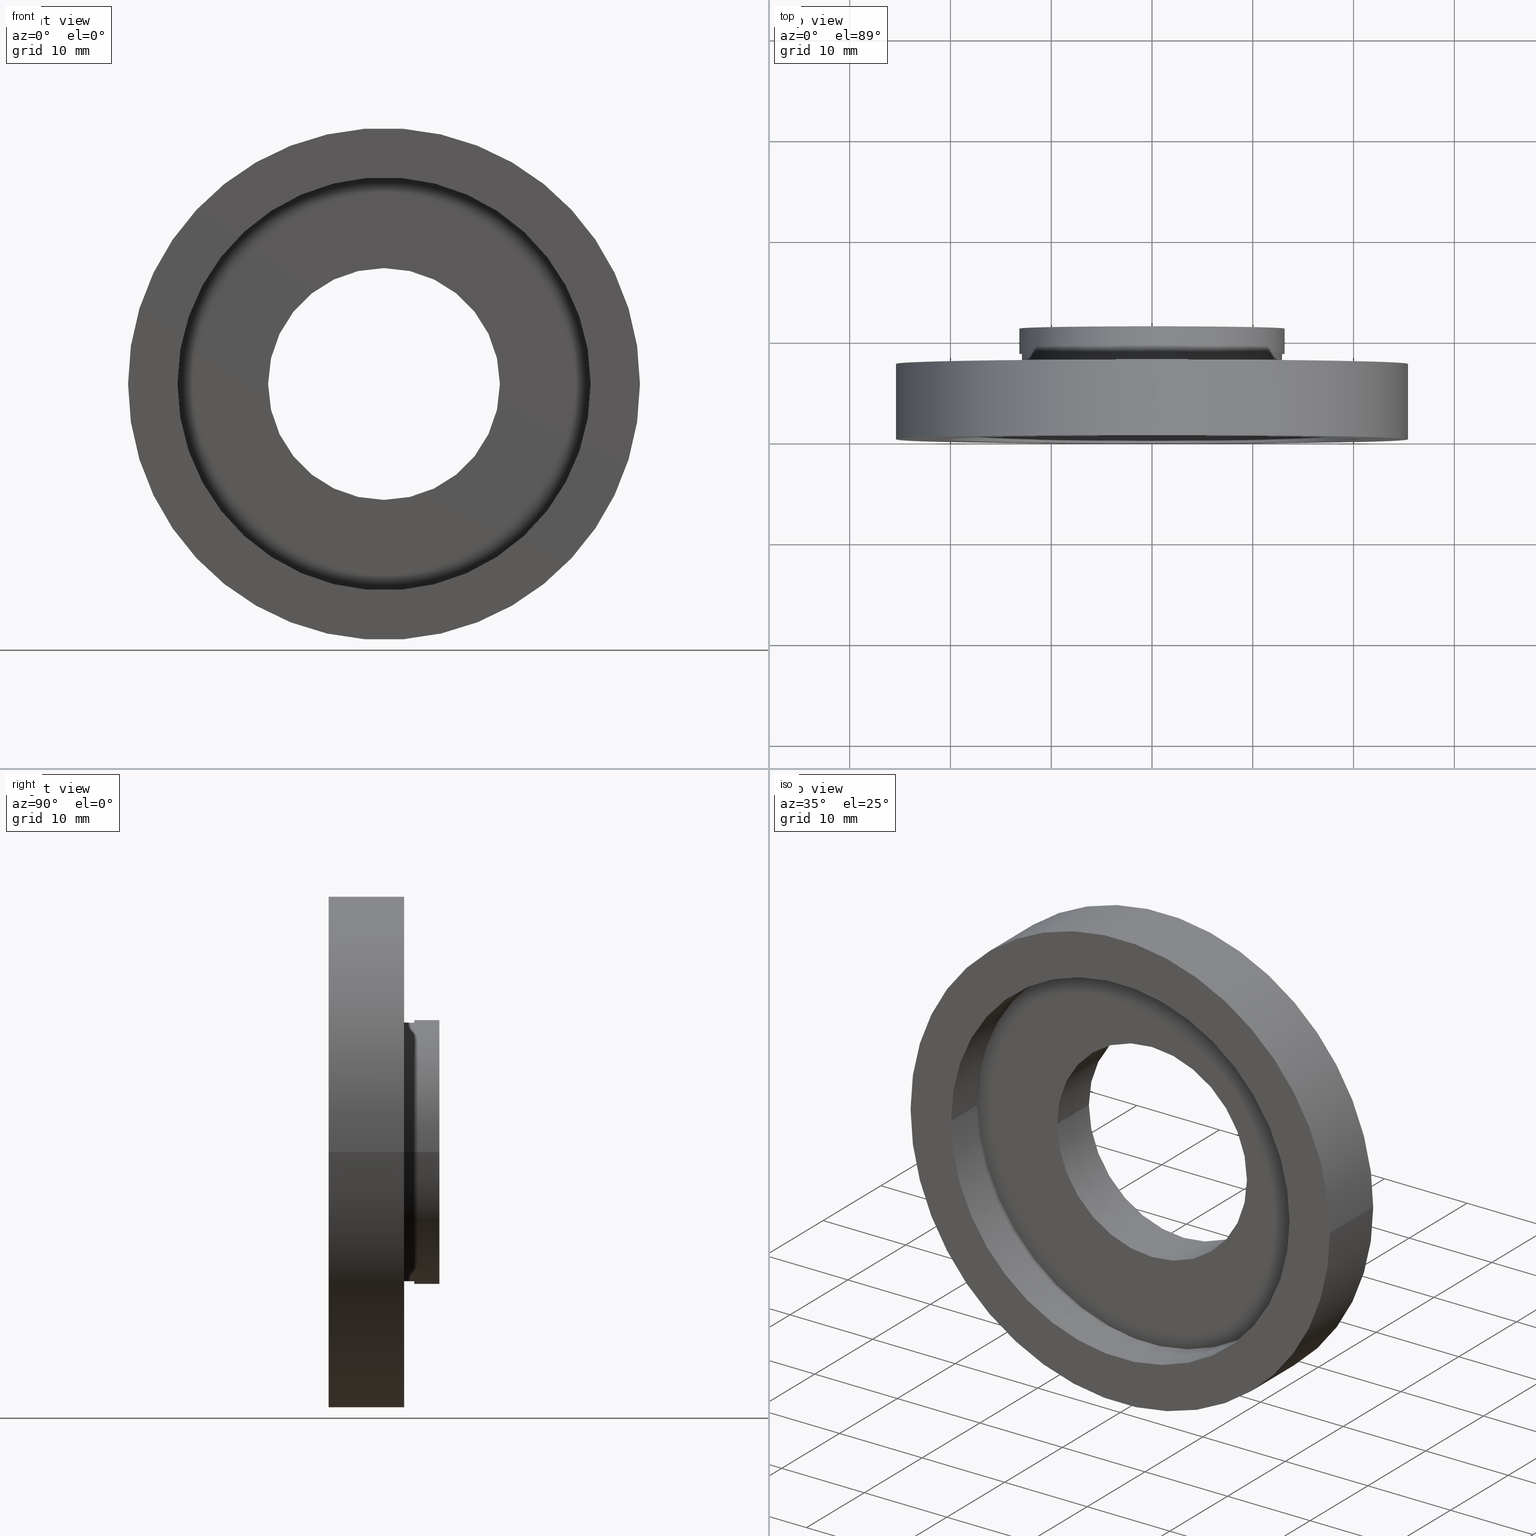
[diagram: canonical four-view strip — front | top / right | iso, engineering-drawing reading convention]
A machine part, canonical four-view strip (front | top / right | iso — engineering-drawing reading convention). The complete STEP part file that produces these views, byte-faithful:
ISO-10303-21;
HEADER;
FILE_DESCRIPTION (( 'STEP AP214' ),
    '1' );
FILE_NAME ('504113.STEP',
    '2019-10-09T07:53:14',
    ( '' ),
    ( '' ),
    'SwSTEP 2.0',
    'SolidWorks 2016',
    '' );
FILE_SCHEMA (( 'AUTOMOTIVE_DESIGN' ));
ENDSEC;

DATA;
#1 = EDGE_LOOP ( 'NONE', ( #17, #119 ) ) ;
#2 =( NAMED_UNIT ( * ) PLANE_ANGLE_UNIT ( ) SI_UNIT ( $, .RADIAN. ) );
#3 = ORIENTED_EDGE ( 'NONE', *, *, #178, .T. ) ;
#4 = CARTESIAN_POINT ( 'NONE',  ( 0.0000000000000000000, 16.88601823708207700, 0.0000000000000000000 ) ) ;
#5 = CYLINDRICAL_SURFACE ( 'NONE', #573, 11.50000000000000000 ) ;
#6 = ORIENTED_EDGE ( 'NONE', *, *, #30, .T. ) ;
#7 = CARTESIAN_POINT ( 'NONE',  ( -20.50000000000000400, 16.88601823708207300, 0.0000000000000000000 ) ) ;
#8 = COLOUR_RGB ( '',1.000000000000000000, 1.000000000000000000, 1.000000000000000000 ) ;
#9 = CIRCLE ( 'NONE', #412, 20.50000000000000400 ) ;
#10 = FACE_BOUND ( 'NONE', #469, .T. ) ;
#11 = ORIENTED_EDGE ( 'NONE', *, *, #431, .F. ) ;
#12 = ADVANCED_FACE ( 'NONE', ( #611 ), #464, .T. ) ;
#13 = ORIENTED_EDGE ( 'NONE', *, *, #354, .T. ) ;
#14 = PRESENTATION_LAYER_ASSIGNMENT (  '', '', ( #195 ) ) ;
#15 = DIRECTION ( 'NONE',  ( -1.000000000000000000, -1.224646799147351000E-016, 0.0000000000000000000 ) ) ;
#16 = CARTESIAN_POINT ( 'NONE',  ( 1.149455719078122700E-015, 7.499999999999998200, 0.0000000000000000000 ) ) ;
#17 = ORIENTED_EDGE ( 'NONE', *, *, #356, .F. ) ;
#18 = SURFACE_STYLE_FILL_AREA ( #128 ) ;
#19 = PLANE ( 'NONE',  #502 ) ;
#20 = AXIS2_PLACEMENT_3D ( 'NONE', #575, #280, #404 ) ;
#21 = CLOSED_SHELL ( 'NONE', ( #223, #576, #12, #570, #279, #375, #185, #434, #487, #536, #532, #584, #388, #328, #132, #274, #56, #321 ) ) ;
#22 = AXIS2_PLACEMENT_3D ( 'NONE', #569, #221, #613 ) ;
#23 = EDGE_LOOP ( 'NONE', ( #549, #316 ) ) ;
#24 = SURFACE_STYLE_FILL_AREA ( #312 ) ;
#25 = VERTEX_POINT ( 'NONE', #314 ) ;
#26 = DIRECTION ( 'NONE',  ( -1.000000000000000000, -1.224646799147351000E-016, 0.0000000000000000000 ) ) ;
#27 = ORIENTED_EDGE ( 'NONE', *, *, #356, .T. ) ;
#28 = LINE ( 'NONE', #74, #160 ) ;
#29 = DIRECTION ( 'NONE',  ( -1.000000000000000000, -1.233215741215739600E-016, 0.0000000000000000000 ) ) ;
#30 = EDGE_CURVE ( 'NONE', #615, #35, #529, .T. ) ;
#31 = VERTEX_POINT ( 'NONE', #122 ) ;
#32 = DIRECTION ( 'NONE',  ( -1.000000000000000000, -1.692413147294445700E-016, 0.0000000000000000000 ) ) ;
#33 = DIRECTION ( 'NONE',  ( -1.000000000000000000, -1.318178933113075200E-016, 0.0000000000000000000 ) ) ;
#34 = CYLINDRICAL_SURFACE ( 'NONE', #285, 11.50000000000000000 ) ;
#35 = VERTEX_POINT ( 'NONE', #273 ) ;
#36 = CARTESIAN_POINT ( 'NONE',  ( 0.0000000000000000000, 16.88601823708207700, 0.0000000000000000000 ) ) ;
#37 = DIRECTION ( 'NONE',  ( -1.224646799147351000E-016, 1.000000000000000000, -0.0000000000000000000 ) ) ;
#38 = AXIS2_PLACEMENT_3D ( 'NONE', #202, #157, #26 ) ;
#39 = DIRECTION ( 'NONE',  ( -1.224646799147351000E-016, 1.000000000000000000, -0.0000000000000000000 ) ) ;
#40 = CARTESIAN_POINT ( 'NONE',  ( 1.516849758822328300E-015, 4.499999999999997300, 0.0000000000000000000 ) ) ;
#41 = ORIENTED_EDGE ( 'NONE', *, *, #528, .F. ) ;
#42 = SURFACE_STYLE_USAGE ( .BOTH. , #377 ) ;
#43 = AXIS2_PLACEMENT_3D ( 'NONE', #341, #243, #149 ) ;
#44 = UNCERTAINTY_MEASURE_WITH_UNIT (LENGTH_MEASURE( 1.000000000000000100E-005 ), #319, 'distance_accuracy_value', 'NONE');
#45 = CIRCLE ( 'NONE', #87, 20.50000000000000000 ) ;
#46 =( LENGTH_UNIT ( ) NAMED_UNIT ( * ) SI_UNIT ( .MILLI., .METRE. ) );
#47 = CYLINDRICAL_SURFACE ( 'NONE', #20, 13.15999999999999800 ) ;
#48 = CARTESIAN_POINT ( 'NONE',  ( 0.0000000000000000000, 16.88601823708207700, 0.0000000000000000000 ) ) ;
#49 = DIRECTION ( 'NONE',  ( 1.000000000000000000, 1.224646799147351000E-016, 0.0000000000000000000 ) ) ;
#50 = AXIS2_PLACEMENT_3D ( 'NONE', #258, #560, #256 ) ;
#51 = CARTESIAN_POINT ( 'NONE',  ( -12.90000000000000000, 16.88601823708207700, 0.0000000000000000000 ) ) ;
#52 = CARTESIAN_POINT ( 'NONE',  ( 21.10000000000000100, 4.500000000000000000, 2.584004746200915400E-015 ) ) ;
#53 = EDGE_CURVE ( 'NONE', #201, #355, #475, .T. ) ;
#54 = VERTEX_POINT ( 'NONE', #71 ) ;
#55 = SURFACE_SIDE_STYLE ('',( #187 ) ) ;
#56 = ADVANCED_FACE ( 'NONE', ( #10, #370 ), #211, .F. ) ;
#57 = DIRECTION ( 'NONE',  ( -1.224646799147351000E-016, 1.000000000000000000, -0.0000000000000000000 ) ) ;
#58 = ORIENTED_EDGE ( 'NONE', *, *, #219, .T. ) ;
#59 = CARTESIAN_POINT ( 'NONE',  ( 25.39999999999999900, -3.588440821193433400E-016, 3.110602869834276900E-015 ) ) ;
#60 = CIRCLE ( 'NONE', #297, 21.10000000000000100 ) ;
#61 = ORIENTED_EDGE ( 'NONE', *, *, #117, .T. ) ;
#62 = DIRECTION ( 'NONE',  ( 1.224646799147351000E-016, -1.000000000000000000, 0.0000000000000000000 ) ) ;
#63 = ORIENTED_EDGE ( 'NONE', *, *, #117, .F. ) ;
#64 = VERTEX_POINT ( 'NONE', #170 ) ;
#65 = MECHANICAL_DESIGN_GEOMETRIC_PRESENTATION_REPRESENTATION (  '', ( #247 ), #99 ) ;
#66 = LINE ( 'NONE', #165, #470 ) ;
#67 = AXIS2_PLACEMENT_3D ( 'NONE', #587, #241, #296 ) ;
#68 = CARTESIAN_POINT ( 'NONE',  ( 2.067940818438636500E-015, -3.469446951953614200E-015, 0.0000000000000000000 ) ) ;
#69 = ORIENTED_EDGE ( 'NONE', *, *, #458, .T. ) ;
#70 = DIRECTION ( 'NONE',  ( -1.224646799147351000E-016, 1.000000000000000000, -0.0000000000000000000 ) ) ;
#71 = CARTESIAN_POINT ( 'NONE',  ( 12.90000000000000200, 8.500000000000000000, 1.579794370900085700E-015 ) ) ;
#72 = ORIENTED_EDGE ( 'NONE', *, *, #437, .T. ) ;
#73 =( GEOMETRIC_REPRESENTATION_CONTEXT ( 3 ) GLOBAL_UNCERTAINTY_ASSIGNED_CONTEXT ( ( #111 ) ) GLOBAL_UNIT_ASSIGNED_CONTEXT ( ( #363, #557, #124 ) ) REPRESENTATION_CONTEXT ( 'NONE', 'WORKASPACE' ) );
#74 = CARTESIAN_POINT ( 'NONE',  ( -25.39999999999999900, 16.88601823708207300, 0.0000000000000000000 ) ) ;
#75 = FILL_AREA_STYLE ('',( #555 ) ) ;
#76 = EDGE_CURVE ( 'NONE', #467, #35, #193, .T. ) ;
#77 = CARTESIAN_POINT ( 'NONE',  ( -13.15999999999999800, 16.88601823708207700, 0.0000000000000000000 ) ) ;
#78 = CARTESIAN_POINT ( 'NONE',  ( 1.026991039163387700E-015, 8.499999999999998200, 0.0000000000000000000 ) ) ;
#79 = EDGE_LOOP ( 'NONE', ( #598, #283, #559, #492 ) ) ;
#80 = DIRECTION ( 'NONE',  ( -1.000000000000000000, -1.224646799147351000E-016, 0.0000000000000000000 ) ) ;
#81 =( NAMED_UNIT ( * ) SI_UNIT ( $, .STERADIAN. ) SOLID_ANGLE_UNIT ( ) );
#82 = EDGE_LOOP ( 'NONE', ( #72, #96 ) ) ;
#83 = CARTESIAN_POINT ( 'NONE',  ( 25.39999999999999900, 4.336808689942011800E-016, 0.0000000000000000000 ) ) ;
#84 = CIRCLE ( 'NONE', #352, 12.90000000000000000 ) ;
#85 = DIRECTION ( 'NONE',  ( 0.0000000000000000000, 0.0000000000000000000, 1.000000000000000000 ) ) ;
#86 = DIRECTION ( 'NONE',  ( -1.224646799147351000E-016, 1.000000000000000000, -0.0000000000000000000 ) ) ;
#87 = AXIS2_PLACEMENT_3D ( 'NONE', #68, #104, #498 ) ;
#88 = VERTEX_POINT ( 'NONE', #472 ) ;
#89 = CARTESIAN_POINT ( 'NONE',  ( -11.49999999999999800, 5.499999999999996400, 0.0000000000000000000 ) ) ;
#90 = DIRECTION ( 'NONE',  ( -1.224646799147351000E-016, 1.000000000000000000, -0.0000000000000000000 ) ) ;
#91 = AXIS2_PLACEMENT_3D ( 'NONE', #440, #583, #335 ) ;
#92 = CARTESIAN_POINT ( 'NONE',  ( 1.516849758822328100E-015, 4.499999999999999100, 0.0000000000000000000 ) ) ;
#93 = VECTOR ( 'NONE', #538, 1000.000000000000000 ) ;
#94 = CYLINDRICAL_SURFACE ( 'NONE', #357, 12.90000000000000000 ) ;
#95 = CARTESIAN_POINT ( 'NONE',  ( 0.0000000000000000000, 16.88601823708207700, 0.0000000000000000000 ) ) ;
#96 = ORIENTED_EDGE ( 'NONE', *, *, #589, .T. ) ;
#97 = CARTESIAN_POINT ( 'NONE',  ( 12.90000000000000000, 16.88601823708207700, 1.579794370900085700E-015 ) ) ;
#98 = ORIENTED_EDGE ( 'NONE', *, *, #163, .T. ) ;
#99 =( GEOMETRIC_REPRESENTATION_CONTEXT ( 3 ) GLOBAL_UNCERTAINTY_ASSIGNED_CONTEXT ( ( #503 ) ) GLOBAL_UNIT_ASSIGNED_CONTEXT ( ( #210, #322, #478 ) ) REPRESENTATION_CONTEXT ( 'NONE', 'WORKASPACE' ) );
#100 = VERTEX_POINT ( 'NONE', #134 ) ;
#101 = CYLINDRICAL_SURFACE ( 'NONE', #547, 25.39999999999999900 ) ;
#102 = ORIENTED_EDGE ( 'NONE', *, *, #53, .T. ) ;
#103 = AXIS2_PLACEMENT_3D ( 'NONE', #36, #515, #116 ) ;
#104 = DIRECTION ( 'NONE',  ( -1.224646799147351000E-016, 1.000000000000000000, -0.0000000000000000000 ) ) ;
#105 = ORIENTED_EDGE ( 'NONE', *, *, #499, .T. ) ;
#106 = ORIENTED_EDGE ( 'NONE', *, *, #163, .F. ) ;
#107 = MECHANICAL_DESIGN_GEOMETRIC_PRESENTATION_REPRESENTATION (  '', ( #340 ), #146 ) ;
#108 = FACE_OUTER_BOUND ( 'NONE', #408, .T. ) ;
#109 = AXIS2_PLACEMENT_3D ( 'NONE', #489, #438, #325 ) ;
#110 = VERTEX_POINT ( 'NONE', #565 ) ;
#111 = UNCERTAINTY_MEASURE_WITH_UNIT (LENGTH_MEASURE( 1.000000000000000100E-005 ), #363, 'distance_accuracy_value', 'NONE');
#112 = AXIS2_PLACEMENT_3D ( 'NONE', #315, #574, #272 ) ;
#113 = CARTESIAN_POINT ( 'NONE',  ( 2.067940818438636500E-015, -3.469446951953614200E-015, 0.0000000000000000000 ) ) ;
#114 = DIRECTION ( 'NONE',  ( -1.224646799147351000E-016, 1.000000000000000000, 0.0000000000000000000 ) ) ;
#115 = COLOUR_RGB ( '',1.000000000000000000, 1.000000000000000000, 1.000000000000000000 ) ;
#116 = DIRECTION ( 'NONE',  ( -1.000000000000000000, 0.0000000000000000000, 0.0000000000000000000 ) ) ;
#117 = EDGE_CURVE ( 'NONE', #158, #100, #154, .T. ) ;
#118 = SURFACE_STYLE_USAGE ( .BOTH. , #120 ) ;
#119 = ORIENTED_EDGE ( 'NONE', *, *, #396, .F. ) ;
#120 = SURFACE_SIDE_STYLE ('',( #24 ) ) ;
#121 = ORIENTED_EDGE ( 'NONE', *, *, #344, .F. ) ;
#122 = CARTESIAN_POINT ( 'NONE',  ( -12.89999999999999900, 7.499999999999996400, 0.0000000000000000000 ) ) ;
#123 = ORIENTED_EDGE ( 'NONE', *, *, #431, .T. ) ;
#124 =( NAMED_UNIT ( * ) SI_UNIT ( $, .STERADIAN. ) SOLID_ANGLE_UNIT ( ) );
#125 = DIRECTION ( 'NONE',  ( -1.224646799147351000E-016, 1.000000000000000000, 0.0000000000000000000 ) ) ;
#126 = CIRCLE ( 'NONE', #67, 11.50000000000000200 ) ;
#127 = STYLED_ITEM ( 'NONE', ( #174 ), #375 ) ;
#128 = FILL_AREA_STYLE ('',( #481 ) ) ;
#129 = CARTESIAN_POINT ( 'NONE',  ( 1.516849758822328100E-015, 4.499999999999999100, 0.0000000000000000000 ) ) ;
#130 = AXIS2_PLACEMENT_3D ( 'NONE', #40, #419, #617 ) ;
#131 = ORIENTED_EDGE ( 'NONE', *, *, #324, .F. ) ;
#132 = ADVANCED_FACE ( 'NONE', ( #530, #304 ), #177, .F. ) ;
#133 =( NAMED_UNIT ( * ) SI_UNIT ( $, .STERADIAN. ) SOLID_ANGLE_UNIT ( ) );
#134 = CARTESIAN_POINT ( 'NONE',  ( 13.16000000000000200, 10.99999999999999800, 1.611635187677917100E-015 ) ) ;
#135 = PRODUCT_RELATED_PRODUCT_CATEGORY ( 'part', '', ( #148 ) ) ;
#136 = DIRECTION ( 'NONE',  ( -1.224646799147351000E-016, 1.000000000000000000, -0.0000000000000000000 ) ) ;
#137 = SURFACE_STYLE_USAGE ( .BOTH. , #55 ) ;
#138 = SURFACE_STYLE_USAGE ( .BOTH. , #579 ) ;
#139 = AXIS2_PLACEMENT_3D ( 'NONE', #186, #57, #581 ) ;
#140 = DIRECTION ( 'NONE',  ( -1.224646799147351000E-016, 1.000000000000000000, -0.0000000000000000000 ) ) ;
#141 = FACE_OUTER_BOUND ( 'NONE', #79, .T. ) ;
#142 = AXIS2_PLACEMENT_3D ( 'NONE', #129, #378, #368 ) ;
#143 = FILL_AREA_STYLE ('',( #330 ) ) ;
#144 = APPLICATION_PROTOCOL_DEFINITION ( 'draft international standard', 'automotive_design', 1998, #286 ) ;
#145 = UNCERTAINTY_MEASURE_WITH_UNIT (LENGTH_MEASURE( 1.000000000000000100E-005 ), #495, 'distance_accuracy_value', 'NONE');
#146 =( GEOMETRIC_REPRESENTATION_CONTEXT ( 3 ) GLOBAL_UNCERTAINTY_ASSIGNED_CONTEXT ( ( #497 ) ) GLOBAL_UNIT_ASSIGNED_CONTEXT ( ( #432, #215, #531 ) ) REPRESENTATION_CONTEXT ( 'NONE', 'WORKASPACE' ) );
#147 = ORIENTED_EDGE ( 'NONE', *, *, #516, .F. ) ;
#148 = PRODUCT ( '504113', '504113', '', ( #338 ) ) ;
#149 = DIRECTION ( 'NONE',  ( -1.000000000000000000, -1.365923996832131600E-016, 0.0000000000000000000 ) ) ;
#150 = PRODUCT_DEFINITION_SHAPE ( 'NONE', 'NONE',  #455 ) ;
#151 = EDGE_CURVE ( 'NONE', #479, #236, #411, .T. ) ;
#152 = ORIENTED_EDGE ( 'NONE', *, *, #295, .T. ) ;
#153 = CIRCLE ( 'NONE', #38, 25.39999999999999500 ) ;
#154 = CIRCLE ( 'NONE', #299, 13.16000000000000000 ) ;
#155 = ORIENTED_EDGE ( 'NONE', *, *, #308, .T. ) ;
#156 = STYLED_ITEM ( 'NONE', ( #246 ), #434 ) ;
#157 = DIRECTION ( 'NONE',  ( -1.224646799147351000E-016, 1.000000000000000000, -0.0000000000000000000 ) ) ;
#158 = VERTEX_POINT ( 'NONE', #610 ) ;
#159 = AXIS2_PLACEMENT_3D ( 'NONE', #83, #520, #218 ) ;
#160 = VECTOR ( 'NONE', #604, 1000.000000000000000 ) ;
#161 = DIRECTION ( 'NONE',  ( -1.000000000000000000, -1.644287654954319300E-016, 0.0000000000000000000 ) ) ;
#162 = ORIENTED_EDGE ( 'NONE', *, *, #354, .F. ) ;
#163 = EDGE_CURVE ( 'NONE', #167, #110, #329, .T. ) ;
#164 = CARTESIAN_POINT ( 'NONE',  ( -11.50000000000000000, 16.88601823708207700, 0.0000000000000000000 ) ) ;
#165 = CARTESIAN_POINT ( 'NONE',  ( 21.10000000000000100, 16.88601823708208000, 2.584004746200915400E-015 ) ) ;
#166 = PLANE ( 'NONE',  #159 ) ;
#167 = VERTEX_POINT ( 'NONE', #216 ) ;
#168 = MECHANICAL_DESIGN_GEOMETRIC_PRESENTATION_REPRESENTATION (  '', ( #334 ), #230 ) ;
#169 = CARTESIAN_POINT ( 'NONE',  ( 2.067940818438636500E-015, -3.469446951953614200E-015, 0.0000000000000000000 ) ) ;
#170 = CARTESIAN_POINT ( 'NONE',  ( 20.50000000000000400, -9.589210137015444400E-016, 2.510525938252074500E-015 ) ) ;
#171 = EDGE_LOOP ( 'NONE', ( #376, #131, #6, #13 ) ) ;
#172 = CARTESIAN_POINT ( 'NONE',  ( 0.0000000000000000000, 16.88601823708207700, 0.0000000000000000000 ) ) ;
#173 = CARTESIAN_POINT ( 'NONE',  ( 13.15999999999999800, 16.88601823708207700, 1.611635187677916700E-015 ) ) ;
#174 = PRESENTATION_STYLE_ASSIGNMENT (( #501 ) ) ;
#175 =( NAMED_UNIT ( * ) PLANE_ANGLE_UNIT ( ) SI_UNIT ( $, .RADIAN. ) );
#176 = CARTESIAN_POINT ( 'NONE',  ( -25.39999999999999900, 7.499999999999992900, 0.0000000000000000000 ) ) ;
#177 = PLANE ( 'NONE',  #204 ) ;
#178 = EDGE_CURVE ( 'NONE', #346, #355, #395, .T. ) ;
#179 = DIRECTION ( 'NONE',  ( -1.000000000000000000, 0.0000000000000000000, 0.0000000000000000000 ) ) ;
#180 = FILL_AREA_STYLE ('',( #624 ) ) ;
#181 = CARTESIAN_POINT ( 'NONE',  ( 11.50000000000000000, 16.88601823708207700, 1.408343819019456200E-015 ) ) ;
#182 = DIRECTION ( 'NONE',  ( -1.224646799147351000E-016, 1.000000000000000000, -0.0000000000000000000 ) ) ;
#184 = EDGE_LOOP ( 'NONE', ( #257, #488, #525, #121 ) ) ;
#183 = AXIS2_PLACEMENT_3D ( 'NONE', #307, #561, #207 ) ;
#185 = ADVANCED_FACE ( 'NONE', ( #606, #417 ), #166, .F. ) ;
#186 = CARTESIAN_POINT ( 'NONE',  ( 1.394385078907593200E-015, 5.499999999999996400, 0.0000000000000000000 ) ) ;
#187 = SURFACE_STYLE_FILL_AREA ( #143 ) ;
#188 = EDGE_CURVE ( 'NONE', #269, #252, #405, .T. ) ;
#189 = ORIENTED_EDGE ( 'NONE', *, *, #596, .F. ) ;
#190 = UNCERTAINTY_MEASURE_WITH_UNIT (LENGTH_MEASURE( 1.000000000000000100E-005 ), #339, 'distance_accuracy_value', 'NONE');
#191 = CYLINDRICAL_SURFACE ( 'NONE', #578, 21.10000000000000100 ) ;
#192 = EDGE_CURVE ( 'NONE', #269, #100, #429, .T. ) ;
#193 = CIRCLE ( 'NONE', #22, 11.50000000000000200 ) ;
#194 = VERTEX_POINT ( 'NONE', #422 ) ;
#195 = STYLED_ITEM ( 'NONE', ( #254 ), #328 ) ;
#196 = ORIENTED_EDGE ( 'NONE', *, *, #76, .F. ) ;
#197 = CIRCLE ( 'NONE', #50, 11.50000000000000000 ) ;
#198 = COLOUR_RGB ( '',1.000000000000000000, 1.000000000000000000, 1.000000000000000000 ) ;
#199 =( NAMED_UNIT ( * ) SI_UNIT ( $, .STERADIAN. ) SOLID_ANGLE_UNIT ( ) );
#200 = MECHANICAL_DESIGN_GEOMETRIC_PRESENTATION_REPRESENTATION (  '', ( #156 ), #73 ) ;
#201 = VERTEX_POINT ( 'NONE', #176 ) ;
#202 = CARTESIAN_POINT ( 'NONE',  ( 2.067940818438636500E-015, -3.469446951953614200E-015, 0.0000000000000000000 ) ) ;
#203 = DIRECTION ( 'NONE',  ( -1.224646799147351000E-016, 1.000000000000000000, -0.0000000000000000000 ) ) ;
#204 = AXIS2_PLACEMENT_3D ( 'NONE', #372, #125, #80 ) ;
#205 = CYLINDRICAL_SURFACE ( 'NONE', #260, 25.39999999999999900 ) ;
#206 = DIRECTION ( 'NONE',  ( -1.000000000000000000, -1.344746880602176000E-016, 0.0000000000000000000 ) ) ;
#207 = DIRECTION ( 'NONE',  ( 1.000000000000000000, 1.224646799147351000E-016, 0.0000000000000000000 ) ) ;
#208 = CARTESIAN_POINT ( 'NONE',  ( 0.0000000000000000000, 16.88601823708207700, 0.0000000000000000000 ) ) ;
#209 = EDGE_LOOP ( 'NONE', ( #231, #597, #63, #147 ) ) ;
#210 =( LENGTH_UNIT ( ) NAMED_UNIT ( * ) SI_UNIT ( .MILLI., .METRE. ) );
#211 = PLANE ( 'NONE',  #474 ) ;
#212 = VECTOR ( 'NONE', #203, 1000.000000000000000 ) ;
#213 = AXIS2_PLACEMENT_3D ( 'NONE', #426, #136, #485 ) ;
#214 = VECTOR ( 'NONE', #543, 1000.000000000000000 ) ;
#215 =( NAMED_UNIT ( * ) PLANE_ANGLE_UNIT ( ) SI_UNIT ( $, .RADIAN. ) );
#216 = CARTESIAN_POINT ( 'NONE',  ( -20.50000000000000400, 4.499999999999996400, 0.0000000000000000000 ) ) ;
#217 = VERTEX_POINT ( 'NONE', #333 ) ;
#218 = DIRECTION ( 'NONE',  ( -1.000000000000000000, -1.224646799147351000E-016, 0.0000000000000000000 ) ) ;
#219 = EDGE_CURVE ( 'NONE', #88, #54, #462, .T. ) ;
#220 = FILL_AREA_STYLE_COLOUR ( '', #311 ) ;
#221 = DIRECTION ( 'NONE',  ( -1.224646799147351000E-016, 1.000000000000000000, -0.0000000000000000000 ) ) ;
#222 = ORIENTED_EDGE ( 'NONE', *, *, #458, .F. ) ;
#223 = ADVANCED_FACE ( 'NONE', ( #394 ), #101, .T. ) ;
#224 = APPLICATION_CONTEXT ( 'automotive_design' ) ;
#225 = CARTESIAN_POINT ( 'NONE',  ( 0.0000000000000000000, 16.88601823708207700, 0.0000000000000000000 ) ) ;
#226 = VECTOR ( 'NONE', #382, 1000.000000000000000 ) ;
#227 = CARTESIAN_POINT ( 'NONE',  ( 20.50000000000000400, 16.88601823708208000, 2.510525938252074500E-015 ) ) ;
#228 = ORIENTED_EDGE ( 'NONE', *, *, #264, .F. ) ;
#229 =( NAMED_UNIT ( * ) PLANE_ANGLE_UNIT ( ) SI_UNIT ( $, .RADIAN. ) );
#230 =( GEOMETRIC_REPRESENTATION_CONTEXT ( 3 ) GLOBAL_UNCERTAINTY_ASSIGNED_CONTEXT ( ( #145 ) ) GLOBAL_UNIT_ASSIGNED_CONTEXT ( ( #495, #2, #327 ) ) REPRESENTATION_CONTEXT ( 'NONE', 'WORKASPACE' ) );
#231 = ORIENTED_EDGE ( 'NONE', *, *, #556, .T. ) ;
#232 = FACE_OUTER_BOUND ( 'NONE', #564, .T. ) ;
#233 = UNCERTAINTY_MEASURE_WITH_UNIT (LENGTH_MEASURE( 1.000000000000000100E-005 ), #607, 'distance_accuracy_value', 'NONE');
#234 = STYLED_ITEM ( 'NONE', ( #265 ), #12 ) ;
#235 = DIRECTION ( 'NONE',  ( -1.224646799147351000E-016, 1.000000000000000000, -0.0000000000000000000 ) ) ;
#236 = VERTEX_POINT ( 'NONE', #52 ) ;
#237 = ORIENTED_EDGE ( 'NONE', *, *, #392, .F. ) ;
#238 =( NAMED_UNIT ( * ) PLANE_ANGLE_UNIT ( ) SI_UNIT ( $, .RADIAN. ) );
#239 = PRESENTATION_LAYER_ASSIGNMENT (  '', '', ( #247 ) ) ;
#240 = EDGE_LOOP ( 'NONE', ( #102, #508 ) ) ;
#241 = DIRECTION ( 'NONE',  ( -1.224646799147351000E-016, 1.000000000000000000, -0.0000000000000000000 ) ) ;
#242 = VECTOR ( 'NONE', #267, 1000.000000000000000 ) ;
#243 = DIRECTION ( 'NONE',  ( -1.224646799147351000E-016, 1.000000000000000000, -0.0000000000000000000 ) ) ;
#244 = EDGE_LOOP ( 'NONE', ( #517, #58, #364, #189 ) ) ;
#245 = PRESENTATION_STYLE_ASSIGNMENT (( #317 ) ) ;
#246 = PRESENTATION_STYLE_ASSIGNMENT (( #118 ) ) ;
#247 = STYLED_ITEM ( 'NONE', ( #262 ), #570 ) ;
#248 = ORIENTED_EDGE ( 'NONE', *, *, #53, .F. ) ;
#249 = ORIENTED_EDGE ( 'NONE', *, *, #486, .F. ) ;
#250 = DIRECTION ( 'NONE',  ( -1.224646799147351000E-016, 1.000000000000000000, -0.0000000000000000000 ) ) ;
#251 =( GEOMETRIC_REPRESENTATION_CONTEXT ( 3 ) GLOBAL_UNCERTAINTY_ASSIGNED_CONTEXT ( ( #233 ) ) GLOBAL_UNIT_ASSIGNED_CONTEXT ( ( #607, #253, #410 ) ) REPRESENTATION_CONTEXT ( 'NONE', 'WORKASPACE' ) );
#252 = VERTEX_POINT ( 'NONE', #284 ) ;
#253 =( NAMED_UNIT ( * ) PLANE_ANGLE_UNIT ( ) SI_UNIT ( $, .RADIAN. ) );
#254 = PRESENTATION_STYLE_ASSIGNMENT (( #138 ) ) ;
#255 = SURFACE_STYLE_USAGE ( .BOTH. , #259 ) ;
#256 = DIRECTION ( 'NONE',  ( -1.000000000000000000, -1.508455196501571400E-016, 0.0000000000000000000 ) ) ;
#257 = ORIENTED_EDGE ( 'NONE', *, *, #178, .F. ) ;
#258 = CARTESIAN_POINT ( 'NONE',  ( 1.394385078907593000E-015, 5.499999999999998200, 0.0000000000000000000 ) ) ;
#259 = SURFACE_SIDE_STYLE ('',( #347 ) ) ;
#260 = AXIS2_PLACEMENT_3D ( 'NONE', #95, #444, #491 ) ;
#261 = ORIENTED_EDGE ( 'NONE', *, *, #76, .T. ) ;
#262 = PRESENTATION_STYLE_ASSIGNMENT (( #42 ) ) ;
#263 = CARTESIAN_POINT ( 'NONE',  ( 1.149455719078123100E-015, 7.499999999999996400, 0.0000000000000000000 ) ) ;
#264 = EDGE_CURVE ( 'NONE', #110, #167, #9, .T. ) ;
#265 = PRESENTATION_STYLE_ASSIGNMENT (( #255 ) ) ;
#266 = CARTESIAN_POINT ( 'NONE',  ( 0.0000000000000000000, 0.0000000000000000000, 0.0000000000000000000 ) ) ;
#267 = DIRECTION ( 'NONE',  ( -1.224646799147351000E-016, 1.000000000000000000, -0.0000000000000000000 ) ) ;
#268 = FILL_AREA_STYLE ('',( #373 ) ) ;
#269 = VERTEX_POINT ( 'NONE', #442 ) ;
#270 = STYLED_ITEM ( 'NONE', ( #245 ), #584 ) ;
#271 = FACE_OUTER_BOUND ( 'NONE', #294, .T. ) ;
#272 = DIRECTION ( 'NONE',  ( -1.000000000000000000, -1.344746880602176000E-016, 0.0000000000000000000 ) ) ;
#273 = CARTESIAN_POINT ( 'NONE',  ( -11.50000000000000200, 10.99999999999999500, 0.0000000000000000000 ) ) ;
#274 = ADVANCED_FACE ( 'NONE', ( #271 ), #553, .T. ) ;
#275 = ORIENTED_EDGE ( 'NONE', *, *, #383, .F. ) ;
#276 = DIRECTION ( 'NONE',  ( 1.000000000000000000, 0.0000000000000000000, 0.0000000000000000000 ) ) ;
#277 = DIRECTION ( 'NONE',  ( -1.000000000000000000, -1.365923996832131600E-016, 0.0000000000000000000 ) ) ;
#278 = EDGE_CURVE ( 'NONE', #402, #467, #326, .T. ) ;
#279 = ADVANCED_FACE ( 'NONE', ( #108 ), #191, .F. ) ;
#280 = DIRECTION ( 'NONE',  ( -1.224646799147351000E-016, 1.000000000000000000, -0.0000000000000000000 ) ) ;
#281 =( NAMED_UNIT ( * ) SI_UNIT ( $, .STERADIAN. ) SOLID_ANGLE_UNIT ( ) );
#282 = DIRECTION ( 'NONE',  ( -1.224646799147351000E-016, 1.000000000000000000, -0.0000000000000000000 ) ) ;
#283 = ORIENTED_EDGE ( 'NONE', *, *, #151, .F. ) ;
#284 = CARTESIAN_POINT ( 'NONE',  ( -13.15999999999999700, 8.499999999999996400, 0.0000000000000000000 ) ) ;
#285 = AXIS2_PLACEMENT_3D ( 'NONE', #48, #623, #371 ) ;
#286 = APPLICATION_CONTEXT ( 'automotive_design' ) ;
#287 = ORIENTED_EDGE ( 'NONE', *, *, #516, .T. ) ;
#288 = CYLINDRICAL_SURFACE ( 'NONE', #406, 21.10000000000000100 ) ;
#289 = CIRCLE ( 'NONE', #139, 21.10000000000000100 ) ;
#290 = AXIS2_PLACEMENT_3D ( 'NONE', #263, #365, #619 ) ;
#291 = DIRECTION ( 'NONE',  ( -1.224646799147351000E-016, 1.000000000000000000, -0.0000000000000000000 ) ) ;
#292 = ORIENTED_EDGE ( 'NONE', *, *, #486, .T. ) ;
#293 = CARTESIAN_POINT ( 'NONE',  ( -21.10000000000000100, 16.88601823708207300, 0.0000000000000000000 ) ) ;
#294 = EDGE_LOOP ( 'NONE', ( #582, #69, #599, #618 ) ) ;
#295 = EDGE_CURVE ( 'NONE', #25, #167, #318, .T. ) ;
#296 = DIRECTION ( 'NONE',  ( -1.000000000000000000, -1.508455196501571200E-016, 0.0000000000000000000 ) ) ;
#297 = AXIS2_PLACEMENT_3D ( 'NONE', #514, #70, #416 ) ;
#298 = CIRCLE ( 'NONE', #524, 12.90000000000000000 ) ;
#299 = AXIS2_PLACEMENT_3D ( 'NONE', #323, #563, #522 ) ;
#300 = EDGE_CURVE ( 'NONE', #217, #384, #289, .T. ) ;
#301 = EDGE_LOOP ( 'NONE', ( #27, #3, #248, #504 ) ) ;
#302 = COLOUR_RGB ( '',1.000000000000000000, 1.000000000000000000, 1.000000000000000000 ) ;
#303 = CARTESIAN_POINT ( 'NONE',  ( 11.50000000000000200, 5.500000000000000000, 1.408343819019456600E-015 ) ) ;
#304 = FACE_BOUND ( 'NONE', #82, .T. ) ;
#305 = AXIS2_PLACEMENT_3D ( 'NONE', #266, #85, #276 ) ;
#306 = ORIENTED_EDGE ( 'NONE', *, *, #605, .F. ) ;
#307 = CARTESIAN_POINT ( 'NONE',  ( 20.50000000000000400, 4.499999999999999100, 0.0000000000000000000 ) ) ;
#308 = EDGE_CURVE ( 'NONE', #64, #110, #351, .T. ) ;
#309 = MANIFOLD_SOLID_BREP ( '��ת1', #21 ) ;
#310 = CARTESIAN_POINT ( 'NONE',  ( 1.149455719078122700E-015, 7.499999999999998200, 0.0000000000000000000 ) ) ;
#311 = COLOUR_RGB ( '',1.000000000000000000, 1.000000000000000000, 1.000000000000000000 ) ;
#312 = FILL_AREA_STYLE ('',( #585 ) ) ;
#313 = CARTESIAN_POINT ( 'NONE',  ( 0.0000000000000000000, 16.88601823708207700, 0.0000000000000000000 ) ) ;
#314 = CARTESIAN_POINT ( 'NONE',  ( -20.49999999999999600, -5.979972890205683900E-015, 0.0000000000000000000 ) ) ;
#315 = CARTESIAN_POINT ( 'NONE',  ( 1.026991039163387700E-015, 8.499999999999998200, 0.0000000000000000000 ) ) ;
#316 = ORIENTED_EDGE ( 'NONE', *, *, #461, .F. ) ;
#317 = SURFACE_STYLE_USAGE ( .BOTH. , #436 ) ;
#318 = LINE ( 'NONE', #7, #226 ) ;
#319 =( LENGTH_UNIT ( ) NAMED_UNIT ( * ) SI_UNIT ( .MILLI., .METRE. ) );
#320 = AXIS2_PLACEMENT_3D ( 'NONE', #427, #430, #374 ) ;
#321 = ADVANCED_FACE ( 'NONE', ( #513 ), #205, .T. ) ;
#322 =( NAMED_UNIT ( * ) PLANE_ANGLE_UNIT ( ) SI_UNIT ( $, .RADIAN. ) );
#323 = CARTESIAN_POINT ( 'NONE',  ( 7.208293393765502500E-016, 10.99999999999999600, 0.0000000000000000000 ) ) ;
#324 = EDGE_CURVE ( 'NONE', #615, #402, #592, .T. ) ;
#325 = DIRECTION ( 'NONE',  ( -1.000000000000000000, 0.0000000000000000000, 0.0000000000000000000 ) ) ;
#326 = LINE ( 'NONE', #181, #93 ) ;
#327 =( NAMED_UNIT ( * ) SI_UNIT ( $, .STERADIAN. ) SOLID_ANGLE_UNIT ( ) );
#328 = ADVANCED_FACE ( 'NONE', ( #621 ), #47, .T. ) ;
#329 = CIRCLE ( 'NONE', #142, 20.50000000000000400 ) ;
#330 = FILL_AREA_STYLE_COLOUR ( '', #473 ) ;
#331 = MECHANICAL_DESIGN_GEOMETRIC_PRESENTATION_REPRESENTATION (  '', ( #127 ), #480 ) ;
#332 = ORIENTED_EDGE ( 'NONE', *, *, #369, .F. ) ;
#333 = CARTESIAN_POINT ( 'NONE',  ( -21.10000000000000100, 5.499999999999993800, 0.0000000000000000000 ) ) ;
#334 = STYLED_ITEM ( 'NONE', ( #337 ), #309 ) ;
#335 = DIRECTION ( 'NONE',  ( -1.000000000000000000, -1.508455196501571400E-016, 0.0000000000000000000 ) ) ;
#336 = CIRCLE ( 'NONE', #213, 13.15999999999999800 ) ;
#337 = PRESENTATION_STYLE_ASSIGNMENT (( #137 ) ) ;
#338 = PRODUCT_CONTEXT ( 'NONE', #224, 'mechanical' ) ;
#339 =( LENGTH_UNIT ( ) NAMED_UNIT ( * ) SI_UNIT ( .MILLI., .METRE. ) );
#340 = STYLED_ITEM ( 'NONE', ( #602 ), #540 ) ;
#341 = CARTESIAN_POINT ( 'NONE',  ( 1.149455719078123100E-015, 7.499999999999996400, 0.0000000000000000000 ) ) ;
#342 = UNCERTAINTY_MEASURE_WITH_UNIT (LENGTH_MEASURE( 1.000000000000000100E-005 ), #46, 'distance_accuracy_value', 'NONE');
#343 = FACE_OUTER_BOUND ( 'NONE', #381, .T. ) ;
#344 = EDGE_CURVE ( 'NONE', #355, #201, #506, .T. ) ;
#345 = DIRECTION ( 'NONE',  ( 1.000000000000000000, 1.224646799147351000E-016, 0.0000000000000000000 ) ) ;
#346 = VERTEX_POINT ( 'NONE', #59 ) ;
#347 = SURFACE_STYLE_FILL_AREA ( #75 ) ;
#348 = EDGE_LOOP ( 'NONE', ( #533, #519 ) ) ;
#349 = UNCERTAINTY_MEASURE_WITH_UNIT (LENGTH_MEASURE( 1.000000000000000100E-005 ), #535, 'distance_accuracy_value', 'NONE');
#350 = CIRCLE ( 'NONE', #397, 13.16000000000000000 ) ;
#351 = LINE ( 'NONE', #227, #568 ) ;
#352 = AXIS2_PLACEMENT_3D ( 'NONE', #310, #413, #609 ) ;
#353 = DIRECTION ( 'NONE',  ( -1.224646799147351000E-016, 1.000000000000000000, -0.0000000000000000000 ) ) ;
#354 = EDGE_CURVE ( 'NONE', #35, #467, #126, .T. ) ;
#355 = VERTEX_POINT ( 'NONE', #452 ) ;
#356 = EDGE_CURVE ( 'NONE', #505, #346, #494, .T. ) ;
#357 = AXIS2_PLACEMENT_3D ( 'NONE', #172, #526, #179 ) ;
#358 = DIRECTION ( 'NONE',  ( -1.224646799147351000E-016, 1.000000000000000000, -0.0000000000000000000 ) ) ;
#359 = CARTESIAN_POINT ( 'NONE',  ( 11.50000000000000200, 10.99999999999999800, 1.408343819019456600E-015 ) ) ;
#360 = EDGE_LOOP ( 'NONE', ( #106, #228 ) ) ;
#362 = ORIENTED_EDGE ( 'NONE', *, *, #605, .T. ) ;
#361 = MECHANICAL_DESIGN_GEOMETRIC_PRESENTATION_REPRESENTATION (  '', ( #270 ), #451 ) ;
#363 =( LENGTH_UNIT ( ) NAMED_UNIT ( * ) SI_UNIT ( .MILLI., .METRE. ) );
#364 = ORIENTED_EDGE ( 'NONE', *, *, #437, .F. ) ;
#365 = DIRECTION ( 'NONE',  ( -1.224646799147351000E-016, 1.000000000000000000, -0.0000000000000000000 ) ) ;
#366 = VECTOR ( 'NONE', #90, 1000.000000000000000 ) ;
#367 = DIRECTION ( 'NONE',  ( -1.224646799147351000E-016, 1.000000000000000000, -0.0000000000000000000 ) ) ;
#368 = DIRECTION ( 'NONE',  ( -1.000000000000000000, -1.269309860470834200E-016, 0.0000000000000000000 ) ) ;
#369 = EDGE_CURVE ( 'NONE', #479, #217, #603, .T. ) ;
#370 = FACE_OUTER_BOUND ( 'NONE', #240, .T. ) ;
#371 = DIRECTION ( 'NONE',  ( -1.000000000000000000, 0.0000000000000000000, 0.0000000000000000000 ) ) ;
#372 = CARTESIAN_POINT ( 'NONE',  ( 13.16000000000000000, 8.500000000000000000, 0.0000000000000000000 ) ) ;
#373 = FILL_AREA_STYLE_COLOUR ( '', #115 ) ;
#374 = DIRECTION ( 'NONE',  ( -1.000000000000000000, -1.318178933113075500E-016, 0.0000000000000000000 ) ) ;
#375 = ADVANCED_FACE ( 'NONE', ( #343 ), #441, .F. ) ;
#376 = ORIENTED_EDGE ( 'NONE', *, *, #278, .F. ) ;
#377 = SURFACE_SIDE_STYLE ('',( #18 ) ) ;
#378 = DIRECTION ( 'NONE',  ( -1.224646799147351000E-016, 1.000000000000000000, -0.0000000000000000000 ) ) ;
#379 = CIRCLE ( 'NONE', #600, 20.50000000000000000 ) ;
#380 = DIRECTION ( 'NONE',  ( -1.000000000000000000, -1.224646799147351200E-016, 0.0000000000000000000 ) ) ;
#381 = EDGE_LOOP ( 'NONE', ( #306, #155, #389, #454 ) ) ;
#382 = DIRECTION ( 'NONE',  ( -1.224646799147351000E-016, 1.000000000000000000, -0.0000000000000000000 ) ) ;
#383 = EDGE_CURVE ( 'NONE', #31, #88, #298, .T. ) ;
#384 = VERTEX_POINT ( 'NONE', #551 ) ;
#385 = ORIENTED_EDGE ( 'NONE', *, *, #151, .T. ) ;
#386 = EDGE_LOOP ( 'NONE', ( #162, #196 ) ) ;
#387 = DIRECTION ( 'NONE',  ( -1.224646799147351000E-016, 1.000000000000000000, -0.0000000000000000000 ) ) ;
#388 = ADVANCED_FACE ( 'NONE', ( #552, #567 ), #19, .F. ) ;
#389 = ORIENTED_EDGE ( 'NONE', *, *, #264, .T. ) ;
#390 = CARTESIAN_POINT ( 'NONE',  ( 11.50000000000000200, 10.99999999999999800, 0.0000000000000000000 ) ) ;
#391 = ORIENTED_EDGE ( 'NONE', *, *, #188, .T. ) ;
#392 = EDGE_CURVE ( 'NONE', #25, #64, #45, .T. ) ;
#393 = CARTESIAN_POINT ( 'NONE',  ( 0.0000000000000000000, 16.88601823708207700, 0.0000000000000000000 ) ) ;
#394 = FACE_OUTER_BOUND ( 'NONE', #301, .T. ) ;
#395 = LINE ( 'NONE', #572, #435 ) ;
#396 = EDGE_CURVE ( 'NONE', #346, #505, #153, .T. ) ;
#397 = AXIS2_PLACEMENT_3D ( 'NONE', #510, #235, #33 ) ;
#398 = ORIENTED_EDGE ( 'NONE', *, *, #556, .F. ) ;
#399 = FACE_BOUND ( 'NONE', #360, .T. ) ;
#400 = AXIS2_PLACEMENT_3D ( 'NONE', #393, #453, #32 ) ;
#401 = MECHANICAL_DESIGN_GEOMETRIC_PRESENTATION_REPRESENTATION (  '', ( #234 ), #251 ) ;
#402 = VERTEX_POINT ( 'NONE', #303 ) ;
#403 = ORIENTED_EDGE ( 'NONE', *, *, #192, .F. ) ;
#404 = DIRECTION ( 'NONE',  ( -1.000000000000000000, 0.0000000000000000000, 0.0000000000000000000 ) ) ;
#405 = CIRCLE ( 'NONE', #320, 13.15999999999999800 ) ;
#406 = AXIS2_PLACEMENT_3D ( 'NONE', #313, #466, #161 ) ;
#407 = PLANE ( 'NONE',  #183 ) ;
#408 = EDGE_LOOP ( 'NONE', ( #249, #105, #588, #332 ) ) ;
#409 = DIRECTION ( 'NONE',  ( -1.224646799147351000E-016, 1.000000000000000000, -0.0000000000000000000 ) ) ;
#410 =( NAMED_UNIT ( * ) SI_UNIT ( $, .STERADIAN. ) SOLID_ANGLE_UNIT ( ) );
#411 = CIRCLE ( 'NONE', #130, 21.10000000000000100 ) ;
#412 = AXIS2_PLACEMENT_3D ( 'NONE', #92, #182, #542 ) ;
#413 = DIRECTION ( 'NONE',  ( -1.224646799147351000E-016, 1.000000000000000000, -0.0000000000000000000 ) ) ;
#414 = SHAPE_DEFINITION_REPRESENTATION ( #150, #540 ) ;
#415 = CIRCLE ( 'NONE', #614, 12.90000000000000000 ) ;
#416 = DIRECTION ( 'NONE',  ( -1.000000000000000000, -1.233215741215739600E-016, 0.0000000000000000000 ) ) ;
#417 = FACE_BOUND ( 'NONE', #511, .T. ) ;
#418 = CARTESIAN_POINT ( 'NONE',  ( -21.10000000000000100, 4.499999999999994700, 0.0000000000000000000 ) ) ;
#419 = DIRECTION ( 'NONE',  ( -1.224646799147351000E-016, 1.000000000000000000, -0.0000000000000000000 ) ) ;
#420 = EDGE_LOOP ( 'NONE', ( #523, #237, #152, #98 ) ) ;
#421 = FILL_AREA_STYLE ('',( #220 ) ) ;
#422 = CARTESIAN_POINT ( 'NONE',  ( -12.89999999999999900, 8.499999999999996400, 0.0000000000000000000 ) ) ;
#423 = EDGE_LOOP ( 'NONE', ( #41, #425, #261, #558 ) ) ;
#425 = ORIENTED_EDGE ( 'NONE', *, *, #278, .T. ) ;
#424 = PRESENTATION_LAYER_ASSIGNMENT (  '', '', ( #270 ) ) ;
#426 = CARTESIAN_POINT ( 'NONE',  ( 1.026991039163387700E-015, 8.499999999999998200, 0.0000000000000000000 ) ) ;
#427 = CARTESIAN_POINT ( 'NONE',  ( 1.026991039163387700E-015, 8.499999999999998200, 0.0000000000000000000 ) ) ;
#428 = CIRCLE ( 'NONE', #443, 21.10000000000000100 ) ;
#429 = LINE ( 'NONE', #173, #366 ) ;
#430 = DIRECTION ( 'NONE',  ( -1.224646799147351000E-016, 1.000000000000000000, -0.0000000000000000000 ) ) ;
#431 = EDGE_CURVE ( 'NONE', #100, #158, #350, .T. ) ;
#432 =( LENGTH_UNIT ( ) NAMED_UNIT ( * ) SI_UNIT ( .MILLI., .METRE. ) );
#433 = PRODUCT_DEFINITION_CONTEXT ( 'detailed design', #286, 'design' ) ;
#434 = ADVANCED_FACE ( 'NONE', ( #537 ), #544, .F. ) ;
#435 = VECTOR ( 'NONE', #86, 1000.000000000000000 ) ;
#436 = SURFACE_SIDE_STYLE ('',( #463 ) ) ;
#437 = EDGE_CURVE ( 'NONE', #194, #54, #415, .T. ) ;
#438 = DIRECTION ( 'NONE',  ( -1.224646799147351000E-016, 1.000000000000000000, -0.0000000000000000000 ) ) ;
#439 =( GEOMETRIC_REPRESENTATION_CONTEXT ( 3 ) GLOBAL_UNCERTAINTY_ASSIGNED_CONTEXT ( ( #342 ) ) GLOBAL_UNIT_ASSIGNED_CONTEXT ( ( #46, #175, #133 ) ) REPRESENTATION_CONTEXT ( 'NONE', 'WORKASPACE' ) );
#440 = CARTESIAN_POINT ( 'NONE',  ( 1.394385078907593000E-015, 5.499999999999998200, 0.0000000000000000000 ) ) ;
#441 = CYLINDRICAL_SURFACE ( 'NONE', #586, 20.50000000000000400 ) ;
#442 = CARTESIAN_POINT ( 'NONE',  ( 13.16000000000000200, 8.500000000000000000, 1.611635187677917100E-015 ) ) ;
#443 = AXIS2_PLACEMENT_3D ( 'NONE', #459, #358, #29 ) ;
#444 = DIRECTION ( 'NONE',  ( -1.224646799147351000E-016, 1.000000000000000000, -0.0000000000000000000 ) ) ;
#445 = MECHANICAL_DESIGN_GEOMETRIC_PRESENTATION_REPRESENTATION (  '', ( #195 ), #541 ) ;
#446 = DIRECTION ( 'NONE',  ( -1.224646799147351000E-016, 1.000000000000000000, -0.0000000000000000000 ) ) ;
#447 = FACE_BOUND ( 'NONE', #348, .T. ) ;
#448 = FILL_AREA_STYLE_COLOUR ( '', #198 ) ;
#449 = EDGE_LOOP ( 'NONE', ( #398, #580 ) ) ;
#450 = DIRECTION ( 'NONE',  ( -1.000000000000000000, -1.692413147294445700E-016, 0.0000000000000000000 ) ) ;
#451 =( GEOMETRIC_REPRESENTATION_CONTEXT ( 3 ) GLOBAL_UNCERTAINTY_ASSIGNED_CONTEXT ( ( #44 ) ) GLOBAL_UNIT_ASSIGNED_CONTEXT ( ( #319, #571, #81 ) ) REPRESENTATION_CONTEXT ( 'NONE', 'WORKASPACE' ) );
#452 = CARTESIAN_POINT ( 'NONE',  ( 25.39999999999999900, 7.500000000000000000, 3.110602869834276900E-015 ) ) ;
#453 = DIRECTION ( 'NONE',  ( -1.224646799147351000E-016, 1.000000000000000000, -0.0000000000000000000 ) ) ;
#454 = ORIENTED_EDGE ( 'NONE', *, *, #295, .F. ) ;
#455 = PRODUCT_DEFINITION ( 'δ֪', '', #496, #433 ) ;
#456 = SURFACE_STYLE_FILL_AREA ( #509 ) ;
#457 = CARTESIAN_POINT ( 'NONE',  ( 0.0000000000000000000, 16.88601823708207700, 0.0000000000000000000 ) ) ;
#458 = EDGE_CURVE ( 'NONE', #88, #31, #84, .T. ) ;
#459 = CARTESIAN_POINT ( 'NONE',  ( 1.394385078907593200E-015, 5.499999999999996400, 0.0000000000000000000 ) ) ;
#460 = VECTOR ( 'NONE', #39, 1000.000000000000000 ) ;
#461 = EDGE_CURVE ( 'NONE', #384, #217, #428, .T. ) ;
#462 = LINE ( 'NONE', #97, #483 ) ;
#463 = SURFACE_STYLE_FILL_AREA ( #268 ) ;
#464 = CYLINDRICAL_SURFACE ( 'NONE', #103, 13.15999999999999800 ) ;
#465 = DIRECTION ( 'NONE',  ( -1.000000000000000000, -1.224646799147351000E-016, 0.0000000000000000000 ) ) ;
#466 = DIRECTION ( 'NONE',  ( -1.224646799147351000E-016, 1.000000000000000000, -0.0000000000000000000 ) ) ;
#467 = VERTEX_POINT ( 'NONE', #359 ) ;
#468 = PRESENTATION_LAYER_ASSIGNMENT (  '', '', ( #156 ) ) ;
#469 = EDGE_LOOP ( 'NONE', ( #275, #222 ) ) ;
#470 = VECTOR ( 'NONE', #409, 1000.000000000000000 ) ;
#471 = SURFACE_SIDE_STYLE ('',( #484 ) ) ;
#472 = CARTESIAN_POINT ( 'NONE',  ( 12.90000000000000200, 7.500000000000000000, 1.579794370900085700E-015 ) ) ;
#473 = COLOUR_RGB ( '',1.000000000000000000, 1.000000000000000000, 1.000000000000000000 ) ;
#474 = AXIS2_PLACEMENT_3D ( 'NONE', #482, #477, #49 ) ;
#475 = CIRCLE ( 'NONE', #290, 25.39999999999999900 ) ;
#476 = DIRECTION ( 'NONE',  ( -1.000000000000000000, 0.0000000000000000000, 0.0000000000000000000 ) ) ;
#477 = DIRECTION ( 'NONE',  ( 1.224646799147351000E-016, -1.000000000000000000, 0.0000000000000000000 ) ) ;
#478 =( NAMED_UNIT ( * ) SI_UNIT ( $, .STERADIAN. ) SOLID_ANGLE_UNIT ( ) );
#479 = VERTEX_POINT ( 'NONE', #418 ) ;
#480 =( GEOMETRIC_REPRESENTATION_CONTEXT ( 3 ) GLOBAL_UNCERTAINTY_ASSIGNED_CONTEXT ( ( #190 ) ) GLOBAL_UNIT_ASSIGNED_CONTEXT ( ( #339, #238, #199 ) ) REPRESENTATION_CONTEXT ( 'NONE', 'WORKASPACE' ) );
#481 = FILL_AREA_STYLE_COLOUR ( '', #302 ) ;
#482 = CARTESIAN_POINT ( 'NONE',  ( 12.90000000000000200, 7.499999999999999100, 0.0000000000000000000 ) ) ;
#483 = VECTOR ( 'NONE', #387, 1000.000000000000000 ) ;
#484 = SURFACE_STYLE_FILL_AREA ( #421 ) ;
#485 = DIRECTION ( 'NONE',  ( -1.000000000000000000, -1.318178933113075500E-016, 0.0000000000000000000 ) ) ;
#486 = EDGE_CURVE ( 'NONE', #236, #479, #60, .T. ) ;
#487 = ADVANCED_FACE ( 'NONE', ( #399, #232 ), #407, .F. ) ;
#488 = ORIENTED_EDGE ( 'NONE', *, *, #396, .T. ) ;
#489 = CARTESIAN_POINT ( 'NONE',  ( 0.0000000000000000000, 16.88601823708207700, 0.0000000000000000000 ) ) ;
#490 = COLOUR_RGB ( '',1.000000000000000000, 1.000000000000000000, 1.000000000000000000 ) ;
#491 = DIRECTION ( 'NONE',  ( -1.000000000000000000, -1.365923996832131600E-016, 0.0000000000000000000 ) ) ;
#492 = ORIENTED_EDGE ( 'NONE', *, *, #300, .T. ) ;
#493 = LINE ( 'NONE', #77, #212 ) ;
#494 = CIRCLE ( 'NONE', #550, 25.39999999999999500 ) ;
#495 =( LENGTH_UNIT ( ) NAMED_UNIT ( * ) SI_UNIT ( .MILLI., .METRE. ) );
#496 = PRODUCT_DEFINITION_FORMATION_WITH_SPECIFIED_SOURCE ( '�κ�', '', #148, .NOT_KNOWN. ) ;
#497 = UNCERTAINTY_MEASURE_WITH_UNIT (LENGTH_MEASURE( 1.000000000000000100E-005 ), #432, 'distance_accuracy_value', 'NONE');
#498 = DIRECTION ( 'NONE',  ( -1.000000000000000000, -1.224646799147351200E-016, 0.0000000000000000000 ) ) ;
#499 = EDGE_CURVE ( 'NONE', #236, #384, #66, .T. ) ;
#500 = EDGE_LOOP ( 'NONE', ( #403, #391, #287, #11 ) ) ;
#501 = SURFACE_STYLE_USAGE ( .BOTH. , #590 ) ;
#502 = AXIS2_PLACEMENT_3D ( 'NONE', #390, #62, #345 ) ;
#503 = UNCERTAINTY_MEASURE_WITH_UNIT (LENGTH_MEASURE( 1.000000000000000100E-005 ), #210, 'distance_accuracy_value', 'NONE');
#504 = ORIENTED_EDGE ( 'NONE', *, *, #566, .F. ) ;
#505 = VERTEX_POINT ( 'NONE', #554 ) ;
#506 = CIRCLE ( 'NONE', #43, 25.39999999999999900 ) ;
#507 = PRESENTATION_LAYER_ASSIGNMENT (  '', '', ( #334 ) ) ;
#508 = ORIENTED_EDGE ( 'NONE', *, *, #344, .T. ) ;
#509 = FILL_AREA_STYLE ('',( #448 ) ) ;
#510 = CARTESIAN_POINT ( 'NONE',  ( 7.208293393765502500E-016, 10.99999999999999600, 0.0000000000000000000 ) ) ;
#511 = EDGE_LOOP ( 'NONE', ( #612, #362 ) ) ;
#512 = PRESENTATION_LAYER_ASSIGNMENT (  '', '', ( #127 ) ) ;
#513 = FACE_OUTER_BOUND ( 'NONE', #184, .T. ) ;
#514 = CARTESIAN_POINT ( 'NONE',  ( 1.516849758822328300E-015, 4.499999999999997300, 0.0000000000000000000 ) ) ;
#515 = DIRECTION ( 'NONE',  ( -1.224646799147351000E-016, 1.000000000000000000, -0.0000000000000000000 ) ) ;
#516 = EDGE_CURVE ( 'NONE', #252, #158, #493, .T. ) ;
#517 = ORIENTED_EDGE ( 'NONE', *, *, #383, .T. ) ;
#518 = CARTESIAN_POINT ( 'NONE',  ( 11.50000000000000200, 5.499999999999999100, 0.0000000000000000000 ) ) ;
#519 = ORIENTED_EDGE ( 'NONE', *, *, #528, .T. ) ;
#520 = DIRECTION ( 'NONE',  ( -1.224646799147351000E-016, 1.000000000000000000, 0.0000000000000000000 ) ) ;
#521 = SURFACE_STYLE_USAGE ( .BOTH. , #471 ) ;
#522 = DIRECTION ( 'NONE',  ( -1.000000000000000000, -1.318178933113075200E-016, 0.0000000000000000000 ) ) ;
#523 = ORIENTED_EDGE ( 'NONE', *, *, #308, .F. ) ;
#524 = AXIS2_PLACEMENT_3D ( 'NONE', #16, #250, #546 ) ;
#525 = ORIENTED_EDGE ( 'NONE', *, *, #566, .T. ) ;
#526 = DIRECTION ( 'NONE',  ( -1.224646799147351000E-016, 1.000000000000000000, -0.0000000000000000000 ) ) ;
#527 = FACE_OUTER_BOUND ( 'NONE', #23, .T. ) ;
#528 = EDGE_CURVE ( 'NONE', #402, #615, #197, .T. ) ;
#529 = LINE ( 'NONE', #164, #242 ) ;
#530 = FACE_OUTER_BOUND ( 'NONE', #449, .T. ) ;
#531 =( NAMED_UNIT ( * ) SI_UNIT ( $, .STERADIAN. ) SOLID_ANGLE_UNIT ( ) );
#532 = ADVANCED_FACE ( 'NONE', ( #527, #447 ), #601, .F. ) ;
#533 = ORIENTED_EDGE ( 'NONE', *, *, #324, .T. ) ;
#534 = DIRECTION ( 'NONE',  ( -1.000000000000000000, -1.644287654954319300E-016, 0.0000000000000000000 ) ) ;
#535 =( LENGTH_UNIT ( ) NAMED_UNIT ( * ) SI_UNIT ( .MILLI., .METRE. ) );
#536 = ADVANCED_FACE ( 'NONE', ( #141 ), #288, .F. ) ;
#537 = FACE_OUTER_BOUND ( 'NONE', #420, .T. ) ;
#538 = DIRECTION ( 'NONE',  ( -1.224646799147351000E-016, 1.000000000000000000, -0.0000000000000000000 ) ) ;
#539 = PRESENTATION_LAYER_ASSIGNMENT (  '', '', ( #340 ) ) ;
#540 = ADVANCED_BREP_SHAPE_REPRESENTATION ( '504113', ( #309, #305 ), #439 ) ;
#541 =( GEOMETRIC_REPRESENTATION_CONTEXT ( 3 ) GLOBAL_UNCERTAINTY_ASSIGNED_CONTEXT ( ( #349 ) ) GLOBAL_UNIT_ASSIGNED_CONTEXT ( ( #535, #229, #281 ) ) REPRESENTATION_CONTEXT ( 'NONE', 'WORKASPACE' ) );
#542 = DIRECTION ( 'NONE',  ( -1.000000000000000000, -1.269309860470834200E-016, 0.0000000000000000000 ) ) ;
#543 = DIRECTION ( 'NONE',  ( -1.224646799147351000E-016, 1.000000000000000000, -0.0000000000000000000 ) ) ;
#544 = CYLINDRICAL_SURFACE ( 'NONE', #400, 20.50000000000000400 ) ;
#545 = AXIS2_PLACEMENT_3D ( 'NONE', #518, #114, #465 ) ;
#546 = DIRECTION ( 'NONE',  ( -1.000000000000000000, -1.344746880602176000E-016, 0.0000000000000000000 ) ) ;
#547 = AXIS2_PLACEMENT_3D ( 'NONE', #225, #282, #277 ) ;
#548 = FACE_OUTER_BOUND ( 'NONE', #171, .T. ) ;
#549 = ORIENTED_EDGE ( 'NONE', *, *, #300, .F. ) ;
#550 = AXIS2_PLACEMENT_3D ( 'NONE', #113, #291, #15 ) ;
#551 = CARTESIAN_POINT ( 'NONE',  ( 21.10000000000000100, 5.499999999999999100, 2.584004746200915400E-015 ) ) ;
#552 = FACE_BOUND ( 'NONE', #386, .T. ) ;
#553 = CYLINDRICAL_SURFACE ( 'NONE', #109, 12.90000000000000000 ) ;
#554 = CARTESIAN_POINT ( 'NONE',  ( -25.39999999999999100, -6.580049821787884700E-015, 0.0000000000000000000 ) ) ;
#555 = FILL_AREA_STYLE_COLOUR ( '', #490 ) ;
#556 = EDGE_CURVE ( 'NONE', #252, #269, #336, .T. ) ;
#557 =( NAMED_UNIT ( * ) PLANE_ANGLE_UNIT ( ) SI_UNIT ( $, .RADIAN. ) );
#558 = ORIENTED_EDGE ( 'NONE', *, *, #30, .F. ) ;
#559 = ORIENTED_EDGE ( 'NONE', *, *, #369, .T. ) ;
#560 = DIRECTION ( 'NONE',  ( -1.224646799147351000E-016, 1.000000000000000000, -0.0000000000000000000 ) ) ;
#561 = DIRECTION ( 'NONE',  ( 1.224646799147351000E-016, -1.000000000000000000, 0.0000000000000000000 ) ) ;
#562 = APPLICATION_PROTOCOL_DEFINITION ( 'draft international standard', 'automotive_design', 1998, #224 ) ;
#563 = DIRECTION ( 'NONE',  ( -1.224646799147351000E-016, 1.000000000000000000, -0.0000000000000000000 ) ) ;
#564 = EDGE_LOOP ( 'NONE', ( #385, #292 ) ) ;
#565 = CARTESIAN_POINT ( 'NONE',  ( 20.50000000000000400, 4.500000000000001800, 2.510525938252074500E-015 ) ) ;
#566 = EDGE_CURVE ( 'NONE', #505, #201, #28, .T. ) ;
#567 = FACE_OUTER_BOUND ( 'NONE', #608, .T. ) ;
#568 = VECTOR ( 'NONE', #140, 1000.000000000000000 ) ;
#569 = CARTESIAN_POINT ( 'NONE',  ( 7.208293393765502500E-016, 10.99999999999999600, 0.0000000000000000000 ) ) ;
#570 = ADVANCED_FACE ( 'NONE', ( #594 ), #5, .F. ) ;
#571 =( NAMED_UNIT ( * ) PLANE_ANGLE_UNIT ( ) SI_UNIT ( $, .RADIAN. ) );
#572 = CARTESIAN_POINT ( 'NONE',  ( 25.39999999999999900, 16.88601823708208000, 3.110602869834276900E-015 ) ) ;
#573 = AXIS2_PLACEMENT_3D ( 'NONE', #208, #616, #476 ) ;
#574 = DIRECTION ( 'NONE',  ( -1.224646799147351000E-016, 1.000000000000000000, -0.0000000000000000000 ) ) ;
#575 = CARTESIAN_POINT ( 'NONE',  ( 0.0000000000000000000, 16.88601823708207700, 0.0000000000000000000 ) ) ;
#576 = ADVANCED_FACE ( 'NONE', ( #593 ), #94, .T. ) ;
#577 = SURFACE_STYLE_FILL_AREA ( #180 ) ;
#578 = AXIS2_PLACEMENT_3D ( 'NONE', #4, #446, #534 ) ;
#579 = SURFACE_SIDE_STYLE ('',( #577 ) ) ;
#580 = ORIENTED_EDGE ( 'NONE', *, *, #188, .F. ) ;
#581 = DIRECTION ( 'NONE',  ( -1.000000000000000000, -1.233215741215739600E-016, 0.0000000000000000000 ) ) ;
#582 = ORIENTED_EDGE ( 'NONE', *, *, #219, .F. ) ;
#583 = DIRECTION ( 'NONE',  ( -1.224646799147351000E-016, 1.000000000000000000, -0.0000000000000000000 ) ) ;
#584 = ADVANCED_FACE ( 'NONE', ( #548 ), #34, .F. ) ;
#585 = FILL_AREA_STYLE_COLOUR ( '', #8 ) ;
#586 = AXIS2_PLACEMENT_3D ( 'NONE', #457, #353, #450 ) ;
#587 = CARTESIAN_POINT ( 'NONE',  ( 7.208293393765502500E-016, 10.99999999999999600, 0.0000000000000000000 ) ) ;
#588 = ORIENTED_EDGE ( 'NONE', *, *, #461, .T. ) ;
#589 = EDGE_CURVE ( 'NONE', #54, #194, #591, .T. ) ;
#590 = SURFACE_SIDE_STYLE ('',( #456 ) ) ;
#591 = CIRCLE ( 'NONE', #112, 12.90000000000000000 ) ;
#592 = CIRCLE ( 'NONE', #91, 11.50000000000000000 ) ;
#593 = FACE_OUTER_BOUND ( 'NONE', #244, .T. ) ;
#594 = FACE_OUTER_BOUND ( 'NONE', #423, .T. ) ;
#595 = COLOUR_RGB ( '',1.000000000000000000, 1.000000000000000000, 1.000000000000000000 ) ;
#596 = EDGE_CURVE ( 'NONE', #31, #194, #622, .T. ) ;
#597 = ORIENTED_EDGE ( 'NONE', *, *, #192, .T. ) ;
#598 = ORIENTED_EDGE ( 'NONE', *, *, #499, .F. ) ;
#599 = ORIENTED_EDGE ( 'NONE', *, *, #596, .T. ) ;
#600 = AXIS2_PLACEMENT_3D ( 'NONE', #169, #367, #380 ) ;
#601 = PLANE ( 'NONE',  #545 ) ;
#602 = PRESENTATION_STYLE_ASSIGNMENT (( #521 ) ) ;
#603 = LINE ( 'NONE', #293, #214 ) ;
#604 = DIRECTION ( 'NONE',  ( -1.224646799147351000E-016, 1.000000000000000000, -0.0000000000000000000 ) ) ;
#605 = EDGE_CURVE ( 'NONE', #64, #25, #379, .T. ) ;
#606 = FACE_OUTER_BOUND ( 'NONE', #1, .T. ) ;
#607 =( LENGTH_UNIT ( ) NAMED_UNIT ( * ) SI_UNIT ( .MILLI., .METRE. ) );
#608 = EDGE_LOOP ( 'NONE', ( #61, #123 ) ) ;
#609 = DIRECTION ( 'NONE',  ( -1.000000000000000000, -1.344746880602176000E-016, 0.0000000000000000000 ) ) ;
#610 = CARTESIAN_POINT ( 'NONE',  ( -13.16000000000000000, 10.99999999999999500, 0.0000000000000000000 ) ) ;
#611 = FACE_OUTER_BOUND ( 'NONE', #209, .T. ) ;
#612 = ORIENTED_EDGE ( 'NONE', *, *, #392, .T. ) ;
#613 = DIRECTION ( 'NONE',  ( -1.000000000000000000, -1.508455196501571200E-016, 0.0000000000000000000 ) ) ;
#614 = AXIS2_PLACEMENT_3D ( 'NONE', #78, #37, #206 ) ;
#615 = VERTEX_POINT ( 'NONE', #89 ) ;
#616 = DIRECTION ( 'NONE',  ( -1.224646799147351000E-016, 1.000000000000000000, -0.0000000000000000000 ) ) ;
#617 = DIRECTION ( 'NONE',  ( -1.000000000000000000, -1.233215741215739600E-016, 0.0000000000000000000 ) ) ;
#618 = ORIENTED_EDGE ( 'NONE', *, *, #589, .F. ) ;
#619 = DIRECTION ( 'NONE',  ( -1.000000000000000000, -1.365923996832131600E-016, 0.0000000000000000000 ) ) ;
#620 = PRESENTATION_LAYER_ASSIGNMENT (  '', '', ( #234 ) ) ;
#621 = FACE_OUTER_BOUND ( 'NONE', #500, .T. ) ;
#622 = LINE ( 'NONE', #51, #460 ) ;
#623 = DIRECTION ( 'NONE',  ( -1.224646799147351000E-016, 1.000000000000000000, -0.0000000000000000000 ) ) ;
#624 = FILL_AREA_STYLE_COLOUR ( '', #595 ) ;
ENDSEC;
END-ISO-10303-21;
